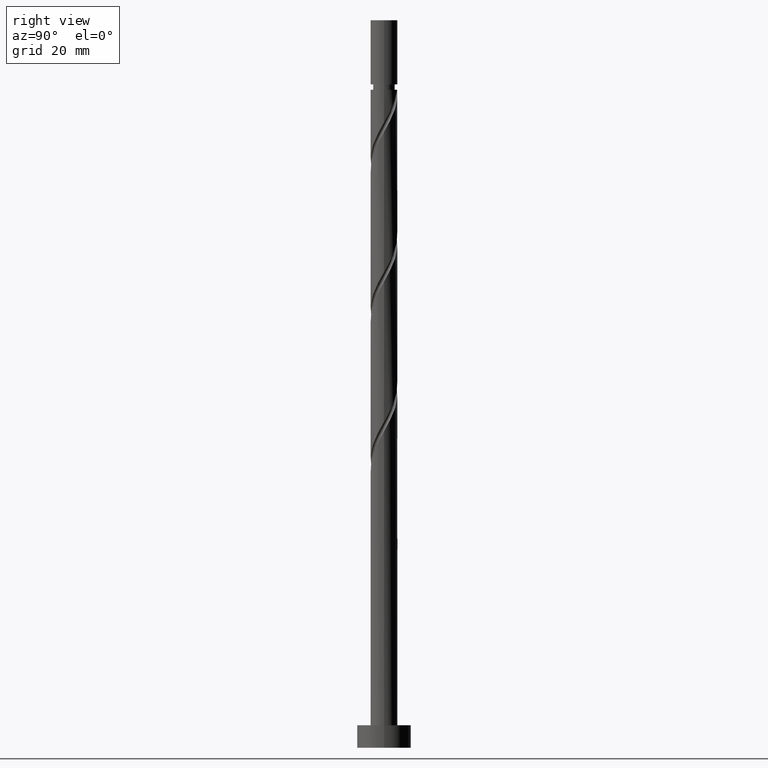
[diagram: clean part render]
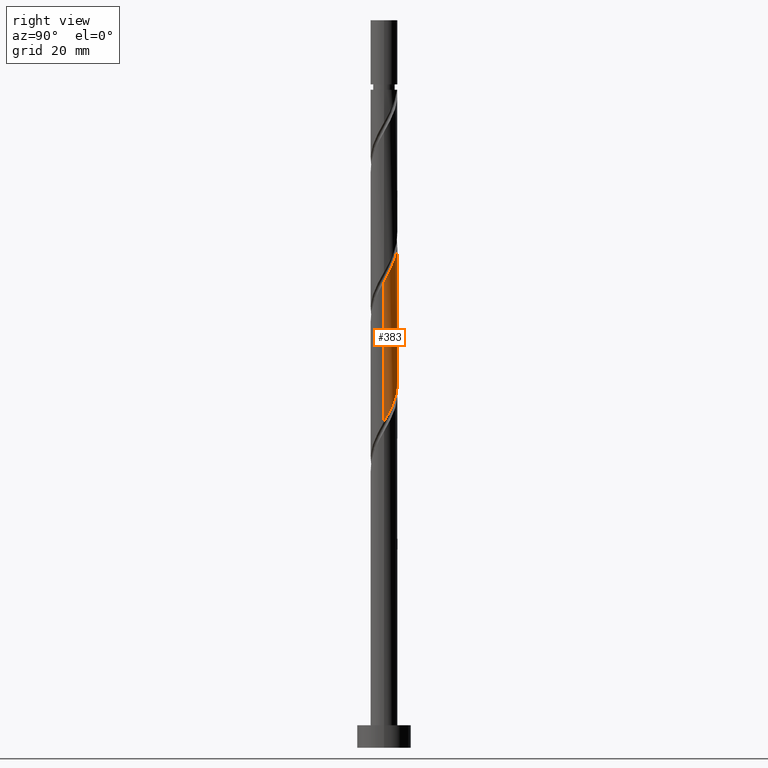
[diagram: same view with one face highlighted and labeled with its STEP entity id]
A machine part, right view. The second image highlights one B-rep face of the part: STEP entity #383.
In plain terms, the highlighted cylindrical surface (edge-blend (fillet) strip) has radius 3 mm, axis along (-0, -0, -1).
Its self-contained STEP definition (entity closure, byte-faithful):
#11 = CARTESIAN_POINT ( 'NONE',  ( 0.5969924622639731782, 2.940000000000000835, 79.86010221568564305 ) ) ;
#43 = CARTESIAN_POINT ( 'NONE',  ( 0.5784892297585081389, 2.970074347914953172, 111.1101022156856430 ) ) ;
#60 = CARTESIAN_POINT ( 'NONE',  ( 2.940000000000005720, 0.5969924622639724010, 104.8601022156856573 ) ) ;
#72 = CARTESIAN_POINT ( 'NONE',  ( -3.000000000000000444, 0.000000000000000000, 162.0000000000000000 ) ) ;
#126 = CARTESIAN_POINT ( 'NONE',  ( 3.000000000000000888, 0.09222585497301757917, 72.75349922559051663 ) ) ;
#132 = CARTESIAN_POINT ( 'NONE',  ( -2.719147488601527662, 1.327489493864651982, 118.0545466601300575 ) ) ;
#152 = CARTESIAN_POINT ( 'NONE',  ( 2.719147488601524110, 1.327489493864646874, 74.99899110457451457 ) ) ;
#176 =( BOUNDED_CURVE ( )  B_SPLINE_CURVE ( 2, ( #337, #193, #60, #887, #456, #1272, #724, #1260, #1655, #615, #1148, #43, #468, #478, #1013, #180, #593, #1124, #606, #735, #1666, #132, #547, #945, #1072, #952, #1229 ),
 .UNSPECIFIED., .F., .T. ) 
 B_SPLINE_CURVE_WITH_KNOTS ( ( 3, 2, 2, 2, 2, 2, 2, 2, 2, 2, 2, 2, 2, 3 ),
 ( 0.4295317669814462946, 0.4375000000000000000, 0.4479166666666666297, 0.4583333333333333703, 0.4687500000000000000, 0.4791666666666666297, 0.4895833333333333703, 0.5000000000000000000, 0.5104166666666667407, 0.5208333333333332593, 0.5312500000000000000, 0.5416666666666667407, 0.5520833333333332593, 0.5545317669814462391 ),
 .UNSPECIFIED. ) 
 CURVE ( )  GEOMETRIC_REPRESENTATION_ITEM ( )  RATIONAL_B_SPLINE_CURVE ( ( 0.9062941362546430568, 0.9031415850403473611, 0.9090909090909228274, 0.9013135103398413062, 0.9090909090909228274, 0.9013135103398413062, 0.9090909090909228274, 0.9013135103398413062, 0.9090909090909228274, 0.9013135103398413062, 0.9090909090909228274, 0.9013135103398413062, 0.9090909090909228274, 0.9013135103398413062, 0.9090909090909228274, 0.9013135103398413062, 0.9090909090909228274, 0.9013135103398413062, 0.9090909090909228274, 0.9013135103398413062, 0.9090909090909228274, 0.9013135103398413062, 0.9090909090909228274, 0.9013135103398413062, 0.9090909090909228274, 0.9072628343904165504, 0.9062941362546431678 ) ) 
 REPRESENTATION_ITEM ( '' )  );
#180 = CARTESIAN_POINT ( 'NONE',  ( -0.9840508051709171422, 2.861404451302102636, 113.8878799934633719 ) ) ;
#193 = CARTESIAN_POINT ( 'NONE',  ( 3.000000000000006217, 0.3015113445777607426, 104.3299619296648473 ) ) ;
#220 = FACE_OUTER_BOUND ( 'NONE', #1667, .T. ) ;
#224 = LINE ( 'NONE', #72, #832 ) ;
#256 = CARTESIAN_POINT ( 'NONE',  ( -3.000000000000000888, -5.398316184146896257E-15, 89.25700220422902476 ) ) ;
#262 = CARTESIAN_POINT ( 'NONE',  ( -2.940000000000000835, 0.5969924622639725120, 88.19343554901897164 ) ) ;
#278 = CARTESIAN_POINT ( 'NONE',  ( -1.327489493864648873, 2.719147488601523666, 83.33232443790785737 ) ) ;
#337 = CARTESIAN_POINT ( 'NONE',  ( 3.000000000000005773, -3.738446110905027621E-16, 103.7965355604755757 ) ) ;
#375 = DIRECTION ( 'NONE',  ( -0.000000000000000000, -0.000000000000000000, -1.000000000000000000 ) ) ;
#383 = ADVANCED_FACE ( 'NONE', ( #220 ), #1702, .T. ) ;
#425 = CARTESIAN_POINT ( 'NONE',  ( 2.844610918258237753, 0.9529893618115753418, 74.30454666013005749 ) ) ;
#433 = CARTESIAN_POINT ( 'NONE',  ( 2.970074347914948731, 0.5784892297585030319, 73.61010221568561462 ) ) ;
#456 = CARTESIAN_POINT ( 'NONE',  ( 2.685308910273302985, 1.337578430002084540, 106.2489911045745430 ) ) ;
#468 = CARTESIAN_POINT ( 'NONE',  ( 0.1842775552007414608, 2.994334948306429656, 111.8045466601301285 ) ) ;
#478 = CARTESIAN_POINT ( 'NONE',  ( -0.2099341193570253006, 3.018595548697906139, 112.4989911045745146 ) ) ;
#486 = EDGE_CURVE ( 'NONE', #1415, #1424, #1183, .T. ) ;
#506 = DIRECTION ( 'NONE',  ( -0.000000000000000000, -0.000000000000000000, -1.000000000000000000 ) ) ;
#515 = AXIS2_PLACEMENT_3D ( 'NONE', #1308, #506, #640 ) ;
#519 = CARTESIAN_POINT ( 'NONE',  ( 3.000000000000000444, 3.673940397442060361E-16, 162.0000000000000000 ) ) ;
#547 = CARTESIAN_POINT ( 'NONE',  ( -2.844610918258240861, 0.9529893618115796716, 118.7489911045745430 ) ) ;
#552 = CARTESIAN_POINT ( 'NONE',  ( -2.685308910273296323, 1.337578430002084540, 86.80454666013008591 ) ) ;
#572 = CARTESIAN_POINT ( 'NONE',  ( -0.1842775552007381856, 2.994334948306425659, 81.24899110457454299 ) ) ;
#591 = EDGE_CURVE ( 'NONE', #1415, #633, #176, .T. ) ;
#593 = CARTESIAN_POINT ( 'NONE',  ( -1.337578430002085428, 2.685308910273302097, 114.5823244379078858 ) ) ;
#606 = CARTESIAN_POINT ( 'NONE',  ( -1.987010638188425604, 2.247618455994267350, 115.9712133267967431 ) ) ;
#615 = CARTESIAN_POINT ( 'NONE',  ( 1.327489493864653314, 2.719147488601527662, 109.7212133267967289 ) ) ;
#633 = VERTEX_POINT ( 'NONE', #1750 ) ;
#640 = DIRECTION ( 'NONE',  ( -1.000000000000000000, 0.000000000000000000, 0.000000000000000000 ) ) ;
#677 = CARTESIAN_POINT ( 'NONE',  ( -0.5784892297585046972, 2.970074347914948731, 81.94343554901895743 ) ) ;
#693 = CARTESIAN_POINT ( 'NONE',  ( 1.337578430002086538, 2.685308910273295435, 78.47121332679677153 ) ) ;
#701 = CARTESIAN_POINT ( 'NONE',  ( 2.282915221543594608, 1.986023542744031589, 76.38787999346341451 ) ) ;
#724 = CARTESIAN_POINT ( 'NONE',  ( 2.247618455994269127, 1.987010638188424050, 107.6378799934634429 ) ) ;
#735 = CARTESIAN_POINT ( 'NONE',  ( -2.282915221543597273, 1.986023542744036696, 116.6656577712411718 ) ) ;
#740 = VERTEX_POINT ( 'NONE', #256 ) ;
#811 = CARTESIAN_POINT ( 'NONE',  ( 2.994334948306425659, 0.1842775552007367701, 72.91565777124118597 ) ) ;
#825 = CARTESIAN_POINT ( 'NONE',  ( 3.000000000000000888, -3.738446110905052766E-15, 72.59033553756236756 ) ) ;
#832 = VECTOR ( 'NONE', #1535, 1000.000000000000000 ) ;
#851 = EDGE_CURVE ( 'NONE', #740, #1424, #1558, .T. ) ;
#887 = CARTESIAN_POINT ( 'NONE',  ( 2.861404451302104412, 0.9840508051709162540, 105.5545466601300859 ) ) ;
#891 = ORIENTED_EDGE ( 'NONE', *, *, #851, .F. ) ;
#938 = CARTESIAN_POINT ( 'NONE',  ( 3.000000000000005773, -3.738446110905027621E-16, 103.7965355604755757 ) ) ;
#945 = CARTESIAN_POINT ( 'NONE',  ( -2.970074347914953616, 0.5784892297585063625, 119.4434355490189432 ) ) ;
#952 = CARTESIAN_POINT ( 'NONE',  ( -3.000000000000005329, 0.09222585497302102087, 120.3000385391140981 ) ) ;
#1013 = CARTESIAN_POINT ( 'NONE',  ( -0.5969924622639720679, 2.940000000000005720, 113.1934355490190001 ) ) ;
#1068 = CARTESIAN_POINT ( 'NONE',  ( -2.861404451302098639, 0.9840508051709164761, 87.49899110457448614 ) ) ;
#1072 = CARTESIAN_POINT ( 'NONE',  ( -2.994334948306429656, 0.1842775552007395179, 120.1378799934634429 ) ) ;
#1076 = CARTESIAN_POINT ( 'NONE',  ( 1.987010638188424938, 2.247618455994262465, 77.08232443790785737 ) ) ;
#1078 = ORIENTED_EDGE ( 'NONE', *, *, #591, .F. ) ;
#1087 = CARTESIAN_POINT ( 'NONE',  ( -3.000000000000000888, 0.3015113445777656276, 88.72357583503973899 ) ) ;
#1093 = CARTESIAN_POINT ( 'NONE',  ( -3.000000000000000888, -5.398316184146896257E-15, 89.25700220422902476 ) ) ;
#1102 = CARTESIAN_POINT ( 'NONE',  ( -0.9529893618115770071, 2.844610918258236865, 82.63787999346342872 ) ) ;
#1123 = VECTOR ( 'NONE', #375, 1000.000000000000000 ) ;
#1124 = CARTESIAN_POINT ( 'NONE',  ( -1.691106054833254158, 2.509213369244498448, 115.2767688823522718 ) ) ;
#1132 = ORIENTED_EDGE ( 'NONE', *, *, #1706, .F. ) ;
#1148 = CARTESIAN_POINT ( 'NONE',  ( 0.9529893618115807818, 2.844610918258240417, 110.4156577712412144 ) ) ;
#1183 = LINE ( 'NONE', #519, #1123 ) ;
#1229 = CARTESIAN_POINT ( 'NONE',  ( -3.000000000000005329, 3.648723404243305719E-15, 120.4632022271422471 ) ) ;
#1260 = CARTESIAN_POINT ( 'NONE',  ( 1.986023542744038251, 2.282915221543595496, 108.3323244379078574 ) ) ;
#1272 = CARTESIAN_POINT ( 'NONE',  ( 2.509213369244500225, 1.691106054833252381, 106.9434355490189859 ) ) ;
#1275 = ORIENTED_EDGE ( 'NONE', *, *, #486, .T. ) ;
#1308 = CARTESIAN_POINT ( 'NONE',  ( 0.000000000000000000, 0.000000000000000000, 162.0000000000000000 ) ) ;
#1349 = CARTESIAN_POINT ( 'NONE',  ( -2.247618455994264242, 1.987010638188423606, 85.41565777124120018 ) ) ;
#1359 = CARTESIAN_POINT ( 'NONE',  ( -2.509213369244495340, 1.691106054833251493, 86.11010221568561462 ) ) ;
#1373 = CARTESIAN_POINT ( 'NONE',  ( 0.2099341193570284925, 3.018595548697901698, 80.55454666013007170 ) ) ;
#1415 = VERTEX_POINT ( 'NONE', #938 ) ;
#1424 = VERTEX_POINT ( 'NONE', #825 ) ;
#1535 = DIRECTION ( 'NONE',  ( -0.000000000000000000, -0.000000000000000000, -1.000000000000000000 ) ) ;
#1558 =( BOUNDED_CURVE ( )  B_SPLINE_CURVE ( 2, ( #1093, #1087, #262, #1068, #552, #1359, #1349, #1602, #1627, #278, #1102, #677, #572, #1373, #11, #1633, #693, #1736, #1076, #701, #1744, #152, #425, #433, #811, #126, #1619 ),
 .UNSPECIFIED., .F., .T. ) 
 B_SPLINE_CURVE_WITH_KNOTS ( ( 3, 2, 2, 2, 2, 2, 2, 2, 2, 2, 2, 2, 2, 3 ),
 ( 0.6795317669814463502, 0.6875000000000000000, 0.6979166666666666297, 0.7083333333333333703, 0.7187500000000000000, 0.7291666666666666297, 0.7395833333333333703, 0.7500000000000000000, 0.7604166666666666297, 0.7708333333333333703, 0.7812500000000000000, 0.7916666666666666297, 0.8020833333333333703, 0.8045317669814463502 ),
 .UNSPECIFIED. ) 
 CURVE ( )  GEOMETRIC_REPRESENTATION_ITEM ( )  RATIONAL_B_SPLINE_CURVE ( ( 0.9062941362546369506, 0.9031415850403413659, 0.9090909090909166101, 0.9013135103398351999, 0.9090909090909166101, 0.9013135103398351999, 0.9090909090909166101, 0.9013135103398351999, 0.9090909090909166101, 0.9013135103398351999, 0.9090909090909166101, 0.9013135103398351999, 0.9090909090909166101, 0.9013135103398351999, 0.9090909090909166101, 0.9013135103398351999, 0.9090909090909166101, 0.9013135103398351999, 0.9090909090909166101, 0.9013135103398351999, 0.9090909090909166101, 0.9013135103398351999, 0.9090909090909166101, 0.9013135103398351999, 0.9090909090909166101, 0.9072628343904103332, 0.9062941362546369506 ) ) 
 REPRESENTATION_ITEM ( '' )  );
#1602 = CARTESIAN_POINT ( 'NONE',  ( -1.986023542744032921, 2.282915221543593720, 84.72121332679672889 ) ) ;
#1619 = CARTESIAN_POINT ( 'NONE',  ( 3.000000000000000888, -3.738446110905052766E-15, 72.59033553756236756 ) ) ;
#1627 = CARTESIAN_POINT ( 'NONE',  ( -1.656756518304340897, 2.501031355072560025, 84.02676888235230024 ) ) ;
#1633 = CARTESIAN_POINT ( 'NONE',  ( 0.9840508051709188075, 2.861404451302097751, 79.16565777124118597 ) ) ;
#1655 = CARTESIAN_POINT ( 'NONE',  ( 1.656756518304344672, 2.501031355072561801, 109.0267688823523002 ) ) ;
#1666 = CARTESIAN_POINT ( 'NONE',  ( -2.501031355072562690, 1.656756518304344228, 117.3601022156856430 ) ) ;
#1667 = EDGE_LOOP ( 'NONE', ( #1078, #1275, #891, #1132 ) ) ;
#1702 = CYLINDRICAL_SURFACE ( 'NONE', #515, 3.000000000000000444 ) ;
#1706 = EDGE_CURVE ( 'NONE', #633, #740, #224, .T. ) ;
#1736 = CARTESIAN_POINT ( 'NONE',  ( 1.691106054833253491, 2.509213369244493563, 77.77676888235228603 ) ) ;
#1744 = CARTESIAN_POINT ( 'NONE',  ( 2.501031355072560025, 1.656756518304340675, 75.69343554901897164 ) ) ;
#1750 = CARTESIAN_POINT ( 'NONE',  ( -3.000000000000005329, 3.648723404243305719E-15, 120.4632022271422613 ) ) ;